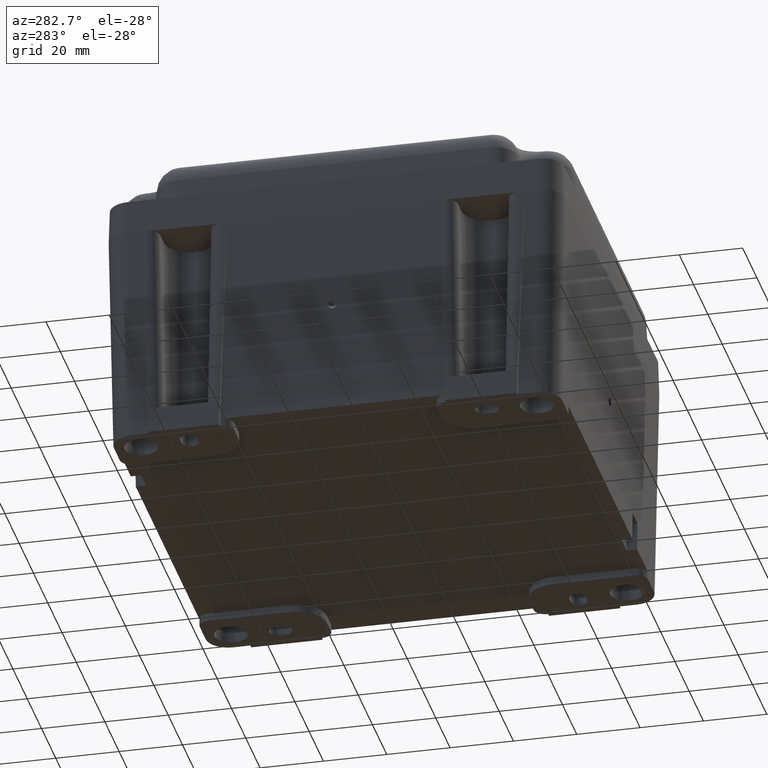
[diagram: clean part render]
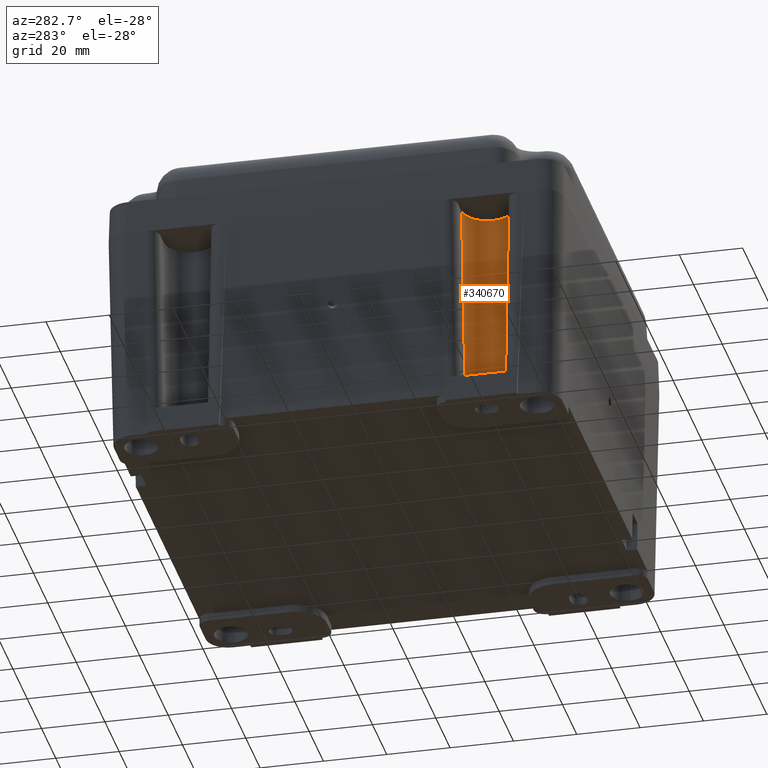
[diagram: same view with one face highlighted and labeled with its STEP entity id]
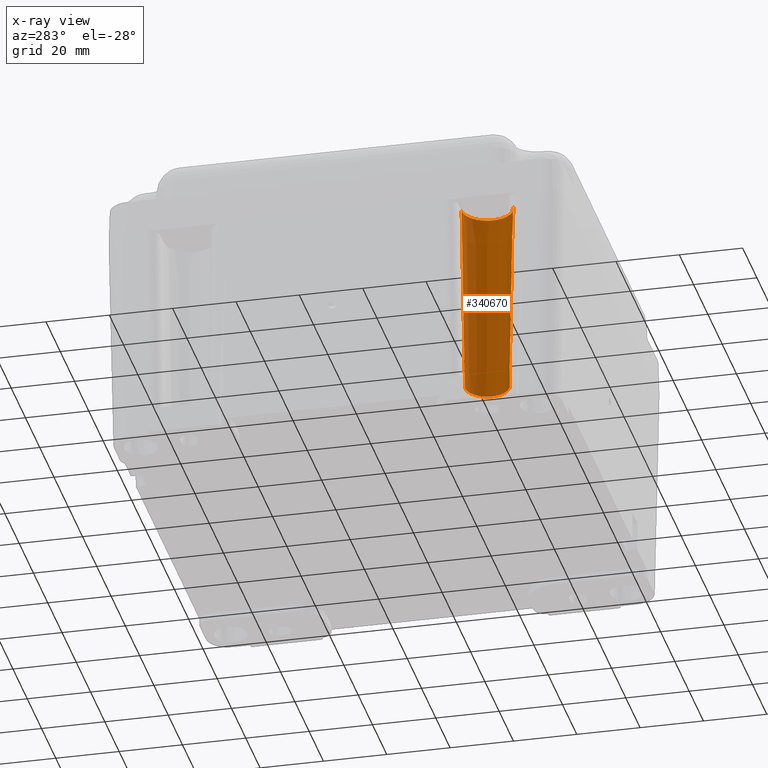
[diagram: x-ray of the same camera — body ghosted, the highlighted face saturated]
A machine part, auxiliary view. The second image highlights one B-rep face of the part: STEP entity #340670.
The next image is the same camera in x-ray: the body ghosted, the highlighted face saturated — about 0% of this face is hidden behind the body in this view.
In plain terms, the highlighted conical surface has half-angle 1 deg.
Its self-contained STEP definition (entity closure, byte-faithful):
#340260=CARTESIAN_POINT('',(-29.2999999999963,36.4999999999965,
-129.999999999999));
#340270=DIRECTION('',(1.,1.04181584530514E-14,1.41743652422467E-16));
#340280=DIRECTION('',(-4.6402127186006E-14,-1.,5.80049192272372E-14));
#340290=AXIS2_PLACEMENT_3D('',#340260,#340270,#340280);
#340300=CONICAL_SURFACE('',#340290,7.,0.0174532925199433);
#340310=CARTESIAN_POINT('',(-29.3000000000079,36.4999999999965,
-129.999999999999));
#340320=DIRECTION('',(1.,1.04246758757064E-14,1.41743652422469E-16));
#340330=DIRECTION('',(1.04246758757064E-14,-1.,5.80049192272372E-14));
#340340=AXIS2_PLACEMENT_3D('',#340310,#340320,#340330);
#340350=CIRCLE('',#340340,6.9999999999998);
#340360=CARTESIAN_POINT('',(-29.3000000000071,36.4999999999961,
-137.000000000007));
#340370=VERTEX_POINT('',#340360);
#340380=CARTESIAN_POINT('',(-29.3000000000071,36.4999999999969,
-123.000000000007));
#340390=VERTEX_POINT('',#340380);
#340400=EDGE_CURVE('',#340370,#340390,#340350,.T.);
#340410=ORIENTED_EDGE('',*,*,#340400,.F.);
#340420=CARTESIAN_POINT('',(-29.2999999999963,36.4999999999965,
-122.999999999999));
#340430=DIRECTION('',(0.999847695156391,1.04907432246672E-14,
0.0174524064372837));
#340440=VECTOR('',#340430,401.090819489851);
#340450=LINE('',#340420,#340440);
#340460=CARTESIAN_POINT('',(32.6999999999973,36.4999999999972,
-121.917785974449));
#340470=VERTEX_POINT('',#340460);
#340480=EDGE_CURVE('',#340390,#340470,#340450,.T.);
#340490=ORIENTED_EDGE('',*,*,#340480,.F.);
#340500=CARTESIAN_POINT('',(32.6999999999857,36.4999999999971,
-129.999999999999));
#340510=DIRECTION('',(1.,1.04246758757064E-14,1.41743652422469E-16));
#340520=DIRECTION('',(1.04246758757064E-14,-1.,5.80049192272372E-14));
#340530=AXIS2_PLACEMENT_3D('',#340500,#340510,#340520);
#340540=CIRCLE('',#340530,8.08221402554918);
#340550=CARTESIAN_POINT('',(32.6999999999872,36.4999999999971,
-138.082214025548));
#340560=VERTEX_POINT('',#340550);
#340570=EDGE_CURVE('',#340560,#340470,#340540,.T.);
#340580=ORIENTED_EDGE('',*,*,#340570,.T.);
#340590=CARTESIAN_POINT('',(-29.2999999999963,36.4999999999965,
-136.999999999999));
#340600=DIRECTION('',(0.999847695156391,1.04262941015765E-14,
-0.0174524064372834));
#340610=VECTOR('',#340600,401.090819489851);
#340620=LINE('',#340590,#340610);
#340630=EDGE_CURVE('',#340370,#340560,#340620,.T.);
#340640=ORIENTED_EDGE('',*,*,#340630,.T.);
#340650=EDGE_LOOP('',(#340640,#340580,#340490,#340410));
#340660=FACE_OUTER_BOUND('',#340650,.T.);
#340670=ADVANCED_FACE('',(#340660),#340300,.F.);